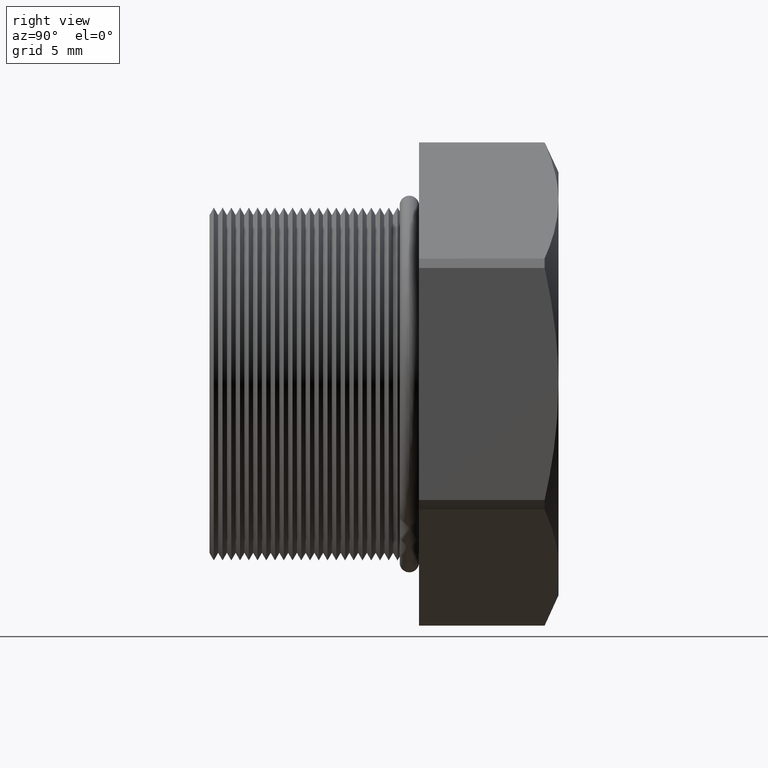
[diagram: clean part render]
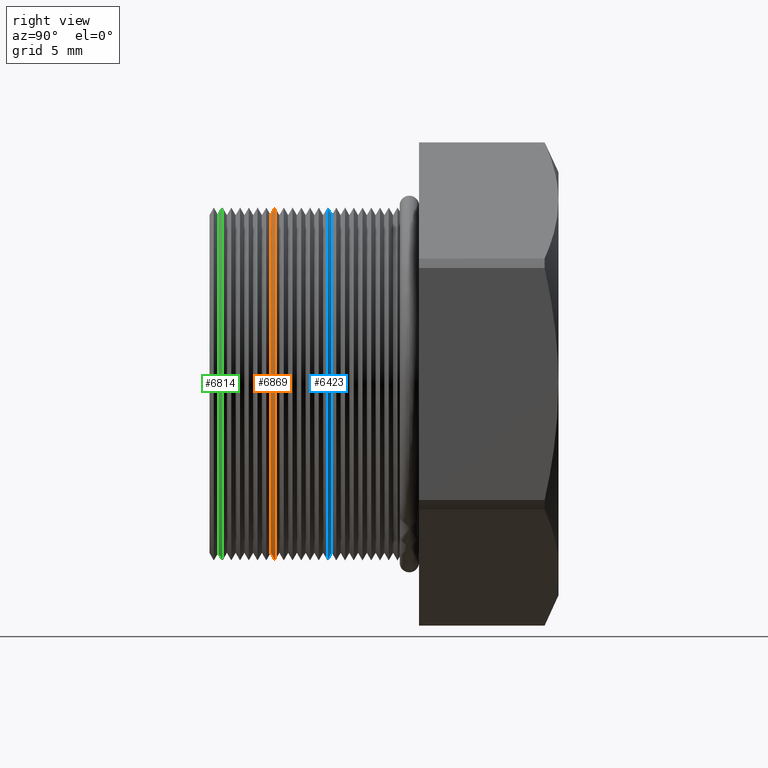
[diagram: same view with three faces highlighted in distinct colors, each labeled with its STEP entity id]
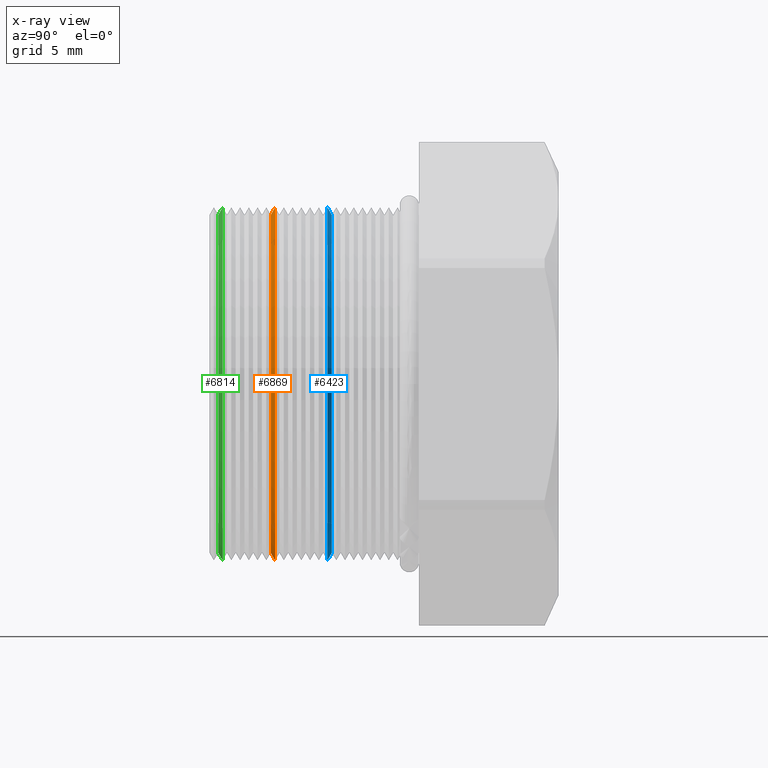
[diagram: x-ray of the same camera — body ghosted, the three highlighted faces saturated]
A machine part, right view with three faces highlighted in distinct colors.
The next image is the same camera in x-ray (body ghosted, the three faces saturated) — at least one of them is partly hidden behind the body in this view.
Their STEP definitions:

[orange] entity #6869 — the highlighted conical surface has half-angle 60 deg.
#6795 = VERTEX_POINT ( 'NONE', #9059 ) ;
#6821 = ORIENTED_EDGE ( 'NONE', *, *, #6822, .F. ) ;
#6822 = EDGE_CURVE ( 'NONE', #6911, #6795, #9139, .T. ) ;
#6832 = ORIENTED_EDGE ( 'NONE', *, *, #6834, .F. ) ;
#6834 = EDGE_CURVE ( 'NONE', #6795, #6902, #9111, .T. ) ;
#6869 = ADVANCED_FACE ( 'NONE', ( #9228 ), #9227, .T. ) ;
#6902 = VERTEX_POINT ( 'NONE', #9292 ) ;
#6903 = EDGE_CURVE ( 'NONE', #6905, #6902, #9291, .T. ) ;
#6904 = ORIENTED_EDGE ( 'NONE', *, *, #6903, .T. ) ;
#6905 = VERTEX_POINT ( 'NONE', #9287 ) ;
#6911 = VERTEX_POINT ( 'NONE', #9279 ) ;
#6912 = EDGE_CURVE ( 'NONE', #6911, #6905, #9273, .T. ) ;
#6914 = ORIENTED_EDGE ( 'NONE', *, *, #6912, .T. ) ;
#6916 = EDGE_LOOP ( 'NONE', ( #6914, #6904, #6832, #6821 ) ) ;
#9059 = CARTESIAN_POINT ( 'NONE',  ( 4.026318816969966200E-017, -0.1206451094170520000, 0.3287738815610546400 ) ) ;
#9107 = DIRECTION ( 'NONE',  ( 0.0000000000000000000, 0.0000000000000000000, 1.000000000000000000 ) ) ;
#9108 = DIRECTION ( 'NONE',  ( -0.0000000000000000000, 1.000000000000000000, -0.0000000000000000000 ) ) ;
#9109 = CARTESIAN_POINT ( 'NONE',  ( 0.0000000000000000000, -0.1206451094170520000, 0.0000000000000000000 ) ) ;
#9110 = AXIS2_PLACEMENT_3D ( 'NONE', #9109, #9108, #9107 ) ;
#9111 = CIRCLE ( 'NONE', #9110, 0.3287738815610546400 ) ;
#9136 = DIRECTION ( 'NONE',  ( 0.0000000000000000000, 0.5000000000000001100, 0.8660254037844386000 ) ) ;
#9137 = VECTOR ( 'NONE', #9136, 39.37007874015748100 ) ;
#9138 = CARTESIAN_POINT ( 'NONE',  ( 0.0000000000000000000, -0.1206451094170520000, 0.3287738815610546400 ) ) ;
#9139 = LINE ( 'NONE', #9138, #9137 ) ;
#9221 = DIRECTION ( 'NONE',  ( 0.0000000000000000000, 0.0000000000000000000, 1.000000000000000000 ) ) ;
#9222 = DIRECTION ( 'NONE',  ( -0.0000000000000000000, 1.000000000000000000, -0.0000000000000000000 ) ) ;
#9223 = CARTESIAN_POINT ( 'NONE',  ( 0.0000000000000000000, -0.1206451094170520000, 0.0000000000000000000 ) ) ;
#9224 = AXIS2_PLACEMENT_3D ( 'NONE', #9223, #9222, #9221 ) ;
#9227 = CONICAL_SURFACE ( 'NONE', #9224, 0.3287738815610546400, 1.047197551196597600 ) ;
#9228 = FACE_OUTER_BOUND ( 'NONE', #6916, .T. ) ;
#9269 = DIRECTION ( 'NONE',  ( 0.0000000000000000000, 0.0000000000000000000, 1.000000000000000000 ) ) ;
#9270 = DIRECTION ( 'NONE',  ( -0.0000000000000000000, 1.000000000000000000, -0.0000000000000000000 ) ) ;
#9271 = CARTESIAN_POINT ( 'NONE',  ( 0.0000000000000000000, -0.1285974636441129200, 0.0000000000000000000 ) ) ;
#9272 = AXIS2_PLACEMENT_3D ( 'NONE', #9271, #9270, #9269 ) ;
#9273 = CIRCLE ( 'NONE', #9272, 0.3150000000000000000 ) ;
#9279 = CARTESIAN_POINT ( 'NONE',  ( 3.857637417314162700E-017, -0.1285974636441129200, 0.3150000000000000000 ) ) ;
#9287 = CARTESIAN_POINT ( 'NONE',  ( 0.0000000000000000000, -0.1285974636441129200, -0.3150000000000000000 ) ) ;
#9288 = DIRECTION ( 'NONE',  ( 1.060575238724906900E-016, 0.5000000000000001100, -0.8660254037844386000 ) ) ;
#9289 = VECTOR ( 'NONE', #9288, 39.37007874015748100 ) ;
#9290 = CARTESIAN_POINT ( 'NONE',  ( 4.026318816969965600E-017, -0.1206451094170520000, -0.3287738815610546400 ) ) ;
#9291 = LINE ( 'NONE', #9290, #9289 ) ;
#9292 = CARTESIAN_POINT ( 'NONE',  ( 0.0000000000000000000, -0.1206451094170520000, -0.3287738815610546400 ) ) ;

[blue] entity #6423 — the highlighted conical surface has half-angle 60 deg.
#6336 = VERTEX_POINT ( 'NONE', #8278 ) ;
#6343 = EDGE_CURVE ( 'NONE', #6336, #6358, #8277, .T. ) ;
#6358 = VERTEX_POINT ( 'NONE', #8263 ) ;
#6391 = ORIENTED_EDGE ( 'NONE', *, *, #6343, .T. ) ;
#6393 = ORIENTED_EDGE ( 'NONE', *, *, #6397, .F. ) ;
#6397 = EDGE_CURVE ( 'NONE', #6418, #6358, #8328, .T. ) ;
#6415 = EDGE_LOOP ( 'NONE', ( #6416, #6420, #6391, #6393 ) ) ;
#6416 = ORIENTED_EDGE ( 'NONE', *, *, #6419, .T. ) ;
#6417 = VERTEX_POINT ( 'NONE', #8365 ) ;
#6418 = VERTEX_POINT ( 'NONE', #8360 ) ;
#6419 = EDGE_CURVE ( 'NONE', #6418, #6417, #8359, .T. ) ;
#6420 = ORIENTED_EDGE ( 'NONE', *, *, #6421, .T. ) ;
#6421 = EDGE_CURVE ( 'NONE', #6417, #6336, #8354, .T. ) ;
#6423 = ADVANCED_FACE ( 'NONE', ( #8407 ), #8406, .T. ) ;
#8263 = CARTESIAN_POINT ( 'NONE',  ( 0.0000000000000000000, -0.02284510941705202700, -0.3287738815610546400 ) ) ;
#8273 = DIRECTION ( 'NONE',  ( 0.0000000000000000000, 0.0000000000000000000, 1.000000000000000000 ) ) ;
#8274 = DIRECTION ( 'NONE',  ( -0.0000000000000000000, 1.000000000000000000, -0.0000000000000000000 ) ) ;
#8275 = CARTESIAN_POINT ( 'NONE',  ( 0.0000000000000000000, -0.02284510941705202700, 0.0000000000000000000 ) ) ;
#8276 = AXIS2_PLACEMENT_3D ( 'NONE', #8275, #8274, #8273 ) ;
#8277 = CIRCLE ( 'NONE', #8276, 0.3287738815610546400 ) ;
#8278 = CARTESIAN_POINT ( 'NONE',  ( 4.026318816969966200E-017, -0.02284510941705202700, 0.3287738815610546400 ) ) ;
#8325 = DIRECTION ( 'NONE',  ( 0.0000000000000000000, -0.5000000000000001100, -0.8660254037844386000 ) ) ;
#8326 = VECTOR ( 'NONE', #8325, 39.37007874015748100 ) ;
#8327 = CARTESIAN_POINT ( 'NONE',  ( 0.0000000000000000000, -0.01489275518999109800, -0.3150000000000000000 ) ) ;
#8328 = LINE ( 'NONE', #8327, #8326 ) ;
#8352 = DIRECTION ( 'NONE',  ( 1.060575238724906900E-016, -0.5000000000000001100, 0.8660254037844386000 ) ) ;
#8353 = CARTESIAN_POINT ( 'NONE',  ( 3.857637417314162700E-017, -0.01489275518999109800, 0.3150000000000000000 ) ) ;
#8354 = LINE ( 'NONE', #8353, #8413 ) ;
#8355 = DIRECTION ( 'NONE',  ( 0.0000000000000000000, 0.0000000000000000000, -1.000000000000000000 ) ) ;
#8356 = DIRECTION ( 'NONE',  ( 0.0000000000000000000, -1.000000000000000000, 0.0000000000000000000 ) ) ;
#8357 = CARTESIAN_POINT ( 'NONE',  ( 0.0000000000000000000, -0.01489275518999109800, 0.0000000000000000000 ) ) ;
#8358 = AXIS2_PLACEMENT_3D ( 'NONE', #8357, #8356, #8355 ) ;
#8359 = CIRCLE ( 'NONE', #8358, 0.3150000000000000000 ) ;
#8360 = CARTESIAN_POINT ( 'NONE',  ( 0.0000000000000000000, -0.01489275518999109800, -0.3150000000000000000 ) ) ;
#8365 = CARTESIAN_POINT ( 'NONE',  ( 3.857637417314162700E-017, -0.01489275518999109800, 0.3150000000000000000 ) ) ;
#8402 = DIRECTION ( 'NONE',  ( 0.0000000000000000000, 0.0000000000000000000, -1.000000000000000000 ) ) ;
#8403 = DIRECTION ( 'NONE',  ( 0.0000000000000000000, -1.000000000000000000, 0.0000000000000000000 ) ) ;
#8404 = CARTESIAN_POINT ( 'NONE',  ( 0.0000000000000000000, -0.01489275518999109800, 0.0000000000000000000 ) ) ;
#8405 = AXIS2_PLACEMENT_3D ( 'NONE', #8404, #8403, #8402 ) ;
#8406 = CONICAL_SURFACE ( 'NONE', #8405, 0.3150000000000000000, 1.047197551196597600 ) ;
#8407 = FACE_OUTER_BOUND ( 'NONE', #6415, .T. ) ;
#8413 = VECTOR ( 'NONE', #8352, 39.37007874015748100 ) ;

[green] entity #6814 — the highlighted conical surface has half-angle 60 deg.
#5517 = DIRECTION ( 'NONE',  ( 0.0000000000000000000, 0.0000000000000000000, 1.000000000000000000 ) ) ;
#5518 = DIRECTION ( 'NONE',  ( -0.0000000000000000000, 1.000000000000000000, -0.0000000000000000000 ) ) ;
#5519 = CARTESIAN_POINT ( 'NONE',  ( 0.0000000000000000000, -0.2184451094170520600, 0.0000000000000000000 ) ) ;
#5520 = AXIS2_PLACEMENT_3D ( 'NONE', #5519, #5518, #5517 ) ;
#5521 = CIRCLE ( 'NONE', #5520, 0.3287738815610546400 ) ;
#5522 = CARTESIAN_POINT ( 'NONE',  ( 0.0000000000000000000, -0.2184451094170520600, -0.3287738815610546400 ) ) ;
#5523 = DIRECTION ( 'NONE',  ( 1.060575238724906900E-016, 0.5000000000000001100, -0.8660254037844386000 ) ) ;
#5524 = VECTOR ( 'NONE', #5523, 39.37007874015748100 ) ;
#5525 = CARTESIAN_POINT ( 'NONE',  ( 4.026318816969965600E-017, -0.2184451094170520600, -0.3287738815610546400 ) ) ;
#5526 = LINE ( 'NONE', #5525, #5524 ) ;
#5687 = EDGE_CURVE ( 'NONE', #5698, #5688, #5526, .T. ) ;
#5688 = VERTEX_POINT ( 'NONE', #5522 ) ;
#5689 = ORIENTED_EDGE ( 'NONE', *, *, #5690, .F. ) ;
#5690 = EDGE_CURVE ( 'NONE', #6718, #5688, #5521, .T. ) ;
#5694 = ORIENTED_EDGE ( 'NONE', *, *, #5687, .T. ) ;
#5697 = VERTEX_POINT ( 'NONE', #7255 ) ;
#5698 = VERTEX_POINT ( 'NONE', #7254 ) ;
#5705 = ORIENTED_EDGE ( 'NONE', *, *, #5706, .T. ) ;
#5706 = EDGE_CURVE ( 'NONE', #5697, #5698, #7241, .T. ) ;
#5711 = EDGE_LOOP ( 'NONE', ( #5705, #5694, #5689, #6719 ) ) ;
#6716 = EDGE_CURVE ( 'NONE', #5697, #6718, #8890, .T. ) ;
#6718 = VERTEX_POINT ( 'NONE', #8950 ) ;
#6719 = ORIENTED_EDGE ( 'NONE', *, *, #6716, .F. ) ;
#6814 = ADVANCED_FACE ( 'NONE', ( #9090 ), #9087, .T. ) ;
#7237 = DIRECTION ( 'NONE',  ( 0.0000000000000000000, 0.0000000000000000000, 1.000000000000000000 ) ) ;
#7238 = DIRECTION ( 'NONE',  ( -0.0000000000000000000, 1.000000000000000000, -0.0000000000000000000 ) ) ;
#7239 = CARTESIAN_POINT ( 'NONE',  ( 0.0000000000000000000, -0.2263974636441130100, 0.0000000000000000000 ) ) ;
#7240 = AXIS2_PLACEMENT_3D ( 'NONE', #7239, #7238, #7237 ) ;
#7241 = CIRCLE ( 'NONE', #7240, 0.3150000000000000000 ) ;
#7254 = CARTESIAN_POINT ( 'NONE',  ( 0.0000000000000000000, -0.2263974636441130100, -0.3150000000000000000 ) ) ;
#7255 = CARTESIAN_POINT ( 'NONE',  ( 3.857637417314162700E-017, -0.2263974636441130100, 0.3150000000000000000 ) ) ;
#8890 = LINE ( 'NONE', #8896, #8952 ) ;
#8896 = CARTESIAN_POINT ( 'NONE',  ( 0.0000000000000000000, -0.2184451094170520600, 0.3287738815610546400 ) ) ;
#8950 = CARTESIAN_POINT ( 'NONE',  ( 4.026318816969965600E-017, -0.2184451094170520600, 0.3287738815610546400 ) ) ;
#8951 = DIRECTION ( 'NONE',  ( 0.0000000000000000000, 0.5000000000000001100, 0.8660254037844386000 ) ) ;
#8952 = VECTOR ( 'NONE', #8951, 39.37007874015748100 ) ;
#9084 = DIRECTION ( 'NONE',  ( 0.0000000000000000000, 0.0000000000000000000, 1.000000000000000000 ) ) ;
#9085 = DIRECTION ( 'NONE',  ( -0.0000000000000000000, 1.000000000000000000, -0.0000000000000000000 ) ) ;
#9086 = AXIS2_PLACEMENT_3D ( 'NONE', #9089, #9085, #9084 ) ;
#9087 = CONICAL_SURFACE ( 'NONE', #9086, 0.3287738815610546400, 1.047197551196597600 ) ;
#9089 = CARTESIAN_POINT ( 'NONE',  ( 0.0000000000000000000, -0.2184451094170520600, 0.0000000000000000000 ) ) ;
#9090 = FACE_OUTER_BOUND ( 'NONE', #5711, .T. ) ;